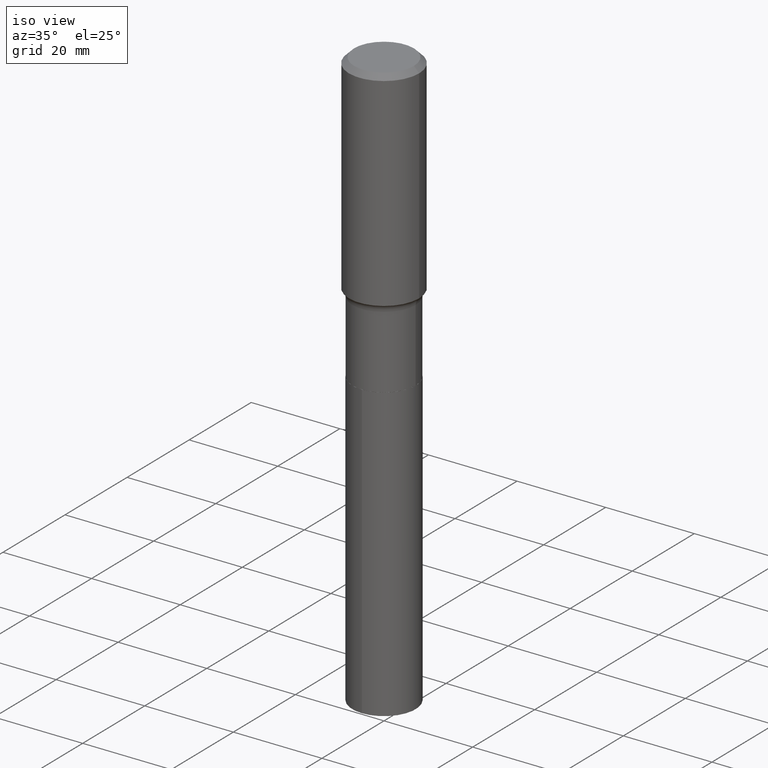
[diagram: clean part render]
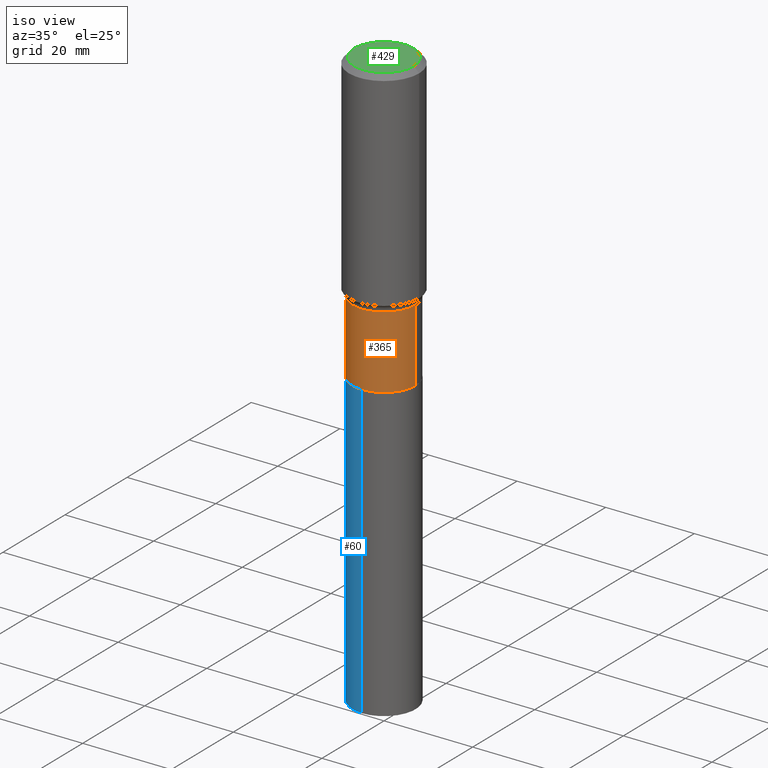
[diagram: same view with three faces highlighted in distinct colors, each labeled with its STEP entity id]
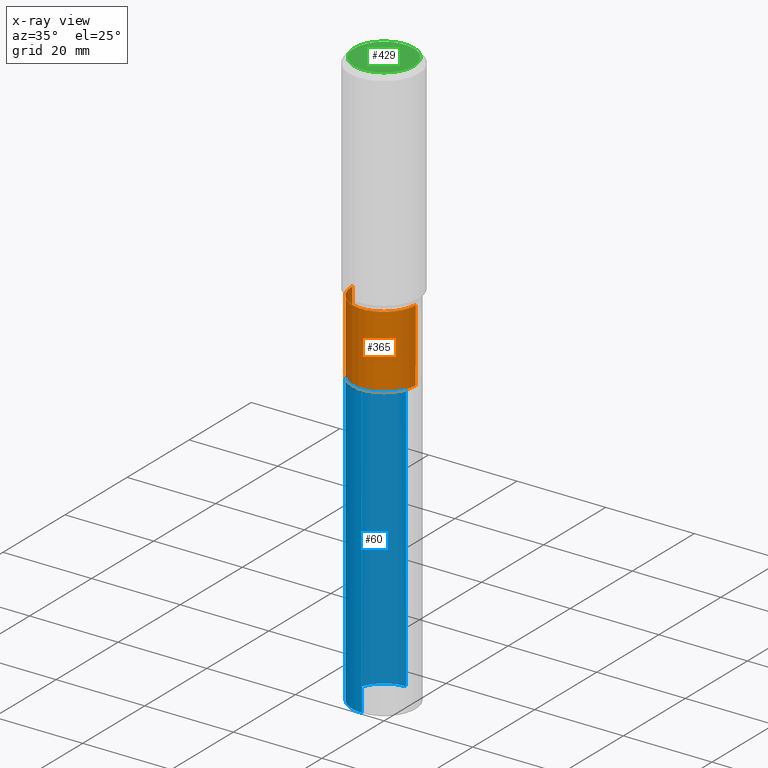
[diagram: x-ray of the same camera — body ghosted, the three highlighted faces saturated]
A machine part, iso view with three faces highlighted in distinct colors.
The next image is the same camera in x-ray (body ghosted, the three faces saturated) — at least one of them is partly hidden behind the body in this view.
Their STEP definitions:

[orange] entity #365 — the highlighted cylindrical surface (partial cylindrical patch) has radius 7.1437 mm, axis along (-0, 0, 1).
#24 = ORIENTED_EDGE ( 'NONE', *, *, #448, .F. ) ;
#32 = VECTOR ( 'NONE', #216, 39.37007874015748143 ) ;
#69 = CARTESIAN_POINT ( 'NONE',  ( 0.000000000000000000, 0.000000000000000000, 0.000000000000000000 ) ) ;
#83 = CIRCLE ( 'NONE', #358, 0.2812500000000000000 ) ;
#111 = AXIS2_PLACEMENT_3D ( 'NONE', #69, #442, #320 ) ;
#122 = CARTESIAN_POINT ( 'NONE',  ( 0.2812499999999999445, -8.652239905787192831E-15, -1.915600000000000191 ) ) ;
#123 = VERTEX_POINT ( 'NONE', #154 ) ;
#126 = VERTEX_POINT ( 'NONE', #122 ) ;
#134 = CIRCLE ( 'NONE', #299, 0.2812499999999999445 ) ;
#147 = ORIENTED_EDGE ( 'NONE', *, *, #467, .F. ) ;
#154 = CARTESIAN_POINT ( 'NONE',  ( -0.2812499999999999445, -5.818326977076751840E-15, -1.915600000000000191 ) ) ;
#164 = CYLINDRICAL_SURFACE ( 'NONE', #111, 0.2812499999999999445 ) ;
#166 = CARTESIAN_POINT ( 'NONE',  ( 6.265291081446318607E-29, -8.945175190116137696E-15, -2.561999999999999389 ) ) ;
#173 = DIRECTION ( 'NONE',  ( -2.445468806185136597E-29, 3.491481338843145583E-15, 1.000000000000000000 ) ) ;
#175 = LINE ( 'NONE', #454, #32 ) ;
#199 = VERTEX_POINT ( 'NONE', #346 ) ;
#204 = VERTEX_POINT ( 'NONE', #305 ) ;
#211 = FACE_OUTER_BOUND ( 'NONE', #399, .T. ) ;
#215 = LINE ( 'NONE', #250, #269 ) ;
#216 = DIRECTION ( 'NONE',  ( -2.445468806185136877E-29, 3.491481338843145188E-15, 1.000000000000000000 ) ) ;
#233 = DIRECTION ( 'NONE',  ( 1.000000000000000000, -6.982962677686269866E-15, 0.000000000000000000 ) ) ;
#250 = CARTESIAN_POINT ( 'NONE',  ( 0.2812499999999999445, -1.963958253099262512E-15, 1.371424718192606732E-29 ) ) ;
#254 = CARTESIAN_POINT ( 'NONE',  ( 4.684540045128248326E-29, -6.688281652687930319E-15, -1.915600000000000191 ) ) ;
#269 = VECTOR ( 'NONE', #456, 39.37007874015748143 ) ;
#299 = AXIS2_PLACEMENT_3D ( 'NONE', #254, #335, #414 ) ;
#305 = CARTESIAN_POINT ( 'NONE',  ( -0.2812500000000000555, -5.818326977076751051E-15, -2.561999999999999389 ) ) ;
#320 = DIRECTION ( 'NONE',  ( 1.000000000000000000, -6.982962677686268288E-15, 4.876176775795935793E-29 ) ) ;
#335 = DIRECTION ( 'NONE',  ( -2.445468806185136597E-29, 3.491481338843145583E-15, 1.000000000000000000 ) ) ;
#346 = CARTESIAN_POINT ( 'NONE',  ( 0.2812500000000000000, -1.090913344321540100E-14, -2.561999999999999389 ) ) ;
#358 = AXIS2_PLACEMENT_3D ( 'NONE', #166, #173, #233 ) ;
#365 = ADVANCED_FACE ( 'NONE', ( #211 ), #164, .T. ) ;
#370 = ORIENTED_EDGE ( 'NONE', *, *, #461, .T. ) ;
#376 = EDGE_CURVE ( 'NONE', #204, #199, #83, .T. ) ;
#391 = ORIENTED_EDGE ( 'NONE', *, *, #376, .T. ) ;
#399 = EDGE_LOOP ( 'NONE', ( #24, #391, #370, #147 ) ) ;
#414 = DIRECTION ( 'NONE',  ( 1.000000000000000000, -6.982962677686268288E-15, 0.000000000000000000 ) ) ;
#442 = DIRECTION ( 'NONE',  ( -2.445468806185136597E-29, 3.491481338843145583E-15, 1.000000000000000000 ) ) ;
#448 = EDGE_CURVE ( 'NONE', #204, #123, #175, .T. ) ;
#454 = CARTESIAN_POINT ( 'NONE',  ( -0.2812499999999999445, 1.998401444325281378E-15, -1.383450494134191988E-29 ) ) ;
#456 = DIRECTION ( 'NONE',  ( -2.445468806185136877E-29, 3.491481338843145188E-15, 1.000000000000000000 ) ) ;
#461 = EDGE_CURVE ( 'NONE', #199, #126, #215, .T. ) ;
#467 = EDGE_CURVE ( 'NONE', #123, #126, #134, .T. ) ;

[blue] entity #60 — the highlighted cylindrical surface (partial cylindrical patch) has radius 7.1437 mm, axis along (-0, 0, 1).
#6 = ORIENTED_EDGE ( 'NONE', *, *, #255, .F. ) ;
#20 = VERTEX_POINT ( 'NONE', #247 ) ;
#23 = DIRECTION ( 'NONE',  ( -2.445458559499423150E-29, 3.491496012680292546E-15, 1.000000000000000000 ) ) ;
#26 = VERTEX_POINT ( 'NONE', #214 ) ;
#48 = CARTESIAN_POINT ( 'NONE',  ( 6.266513815849411408E-29, -8.946920930785559988E-15, -2.562500000000000000 ) ) ;
#51 = DIRECTION ( 'NONE',  ( -2.445458559499422870E-29, 3.491496012680292941E-15, 1.000000000000000000 ) ) ;
#60 = ADVANCED_FACE ( 'NONE', ( #146 ), #462, .T. ) ;
#85 = DIRECTION ( 'NONE',  ( -2.445458559499423150E-29, 3.491496012680292546E-15, 1.000000000000000000 ) ) ;
#87 = DIRECTION ( 'NONE',  ( -2.445458559499422870E-29, 3.491496012680292941E-15, 1.000000000000000000 ) ) ;
#91 = LINE ( 'NONE', #192, #209 ) ;
#133 = VECTOR ( 'NONE', #51, 39.37007874015748143 ) ;
#138 = EDGE_LOOP ( 'NONE', ( #196, #470, #281, #6 ) ) ;
#146 = FACE_OUTER_BOUND ( 'NONE', #138, .T. ) ;
#156 = CARTESIAN_POINT ( 'NONE',  ( 1.998401444325407202E-15, 0.2812499999999818479, -5.161322215627787813 ) ) ;
#157 = EDGE_CURVE ( 'NONE', #165, #26, #226, .T. ) ;
#165 = VERTEX_POINT ( 'NONE', #156 ) ;
#192 = CARTESIAN_POINT ( 'NONE',  ( -1.963958253099199798E-15, -0.2812500000000089373, -2.562499999999998668 ) ) ;
#196 = ORIENTED_EDGE ( 'NONE', *, *, #157, .F. ) ;
#198 = AXIS2_PLACEMENT_3D ( 'NONE', #326, #363, #300 ) ;
#209 = VECTOR ( 'NONE', #87, 39.37007874015748143 ) ;
#213 = CARTESIAN_POINT ( 'NONE',  ( -1.963958253099135506E-15, -0.2812500000000179301, -5.161322215627786036 ) ) ;
#214 = CARTESIAN_POINT ( 'NONE',  ( 1.998401444325408385E-15, 0.2812499999999911182, -2.562500000000000888 ) ) ;
#219 = EDGE_CURVE ( 'NONE', #432, #20, #91, .T. ) ;
#226 = LINE ( 'NONE', #392, #133 ) ;
#247 = CARTESIAN_POINT ( 'NONE',  ( -1.963958253099199798E-15, -0.2812500000000089373, -2.562499999999998668 ) ) ;
#255 = EDGE_CURVE ( 'NONE', #26, #20, #341, .T. ) ;
#281 = ORIENTED_EDGE ( 'NONE', *, *, #219, .T. ) ;
#293 = DIRECTION ( 'NONE',  ( -6.982962677686266711E-15, -1.000000000000000000, 3.885294924322507688E-15 ) ) ;
#300 = DIRECTION ( 'NONE',  ( -6.982962677686266711E-15, -1.000000000000000000, 3.885294924322507688E-15 ) ) ;
#307 = EDGE_CURVE ( 'NONE', #165, #432, #459, .T. ) ;
#326 = CARTESIAN_POINT ( 'NONE',  ( 6.266513815849411408E-29, -8.946920930785559988E-15, -2.562500000000000000 ) ) ;
#341 = CIRCLE ( 'NONE', #379, 0.2812500000000000000 ) ;
#363 = DIRECTION ( 'NONE',  ( -2.445458559499423150E-29, 3.491496012680292546E-15, 1.000000000000000000 ) ) ;
#379 = AXIS2_PLACEMENT_3D ( 'NONE', #48, #85, #464 ) ;
#392 = CARTESIAN_POINT ( 'NONE',  ( 1.998401444325344093E-15, 0.2812499999999910627, -2.562500000000000888 ) ) ;
#397 = CARTESIAN_POINT ( 'NONE',  ( 1.262182584767364047E-28, -1.802069833431494357E-14, -5.161322215627786925 ) ) ;
#409 = AXIS2_PLACEMENT_3D ( 'NONE', #397, #23, #293 ) ;
#432 = VERTEX_POINT ( 'NONE', #213 ) ;
#459 = CIRCLE ( 'NONE', #409, 0.2812500000000000000 ) ;
#462 = CYLINDRICAL_SURFACE ( 'NONE', #198, 0.2812500000000000000 ) ;
#464 = DIRECTION ( 'NONE',  ( -6.982962677686266711E-15, -1.000000000000000000, 3.885294924322507688E-15 ) ) ;
#470 = ORIENTED_EDGE ( 'NONE', *, *, #307, .T. ) ;

[green] entity #429 — the highlighted planar face has unit normal (0, -0, -1).
#8 = CARTESIAN_POINT ( 'NONE',  ( -1.591006383764330162E-46, 2.271535455632767854E-32, 6.505936120470315685E-18 ) ) ;
#25 = CARTESIAN_POINT ( 'NONE',  ( 0.2656250000000000000, -2.064944296359970168E-15, 6.505936120484021373E-18 ) ) ;
#38 = DIRECTION ( 'NONE',  ( 2.438088387897960049E-29, -3.491481338843145188E-15, -1.000000000000000000 ) ) ;
#72 = DIRECTION ( 'NONE',  ( -1.000000000000000000, 6.982962677686265922E-15, -4.876176775795935793E-29 ) ) ;
#109 = CARTESIAN_POINT ( 'NONE',  ( -7.955031918821650812E-47, 1.135767727816383927E-32, 3.252968060235157842E-18 ) ) ;
#117 = DIRECTION ( 'NONE',  ( -2.445468806185136597E-29, 3.491481338843145583E-15, 1.000000000000000000 ) ) ;
#128 = DIRECTION ( 'NONE',  ( -2.445468806185136597E-29, 3.491481338843145583E-15, 1.000000000000000000 ) ) ;
#153 = CIRCLE ( 'NONE', #315, 0.2656250000000000000 ) ;
#160 = ORIENTED_EDGE ( 'NONE', *, *, #422, .T. ) ;
#169 = CIRCLE ( 'NONE', #200, 0.2656250000000000000 ) ;
#200 = AXIS2_PLACEMENT_3D ( 'NONE', #477, #128, #282 ) ;
#220 = FACE_OUTER_BOUND ( 'NONE', #445, .T. ) ;
#261 = EDGE_CURVE ( 'NONE', #361, #393, #153, .T. ) ;
#268 = DIRECTION ( 'NONE',  ( 1.000000000000000000, -6.982962677686268288E-15, 4.876286914311434227E-29 ) ) ;
#282 = DIRECTION ( 'NONE',  ( 1.000000000000000000, -6.982962677686268288E-15, 4.876286914311434227E-29 ) ) ;
#286 = ORIENTED_EDGE ( 'NONE', *, *, #261, .T. ) ;
#296 = PLANE ( 'NONE',  #306 ) ;
#306 = AXIS2_PLACEMENT_3D ( 'NONE', #109, #38, #72 ) ;
#315 = AXIS2_PLACEMENT_3D ( 'NONE', #8, #117, #268 ) ;
#361 = VERTEX_POINT ( 'NONE', #25 ) ;
#393 = VERTEX_POINT ( 'NONE', #481 ) ;
#422 = EDGE_CURVE ( 'NONE', #393, #361, #169, .T. ) ;
#429 = ADVANCED_FACE ( 'NONE', ( #220 ), #296, .F. ) ;
#445 = EDGE_LOOP ( 'NONE', ( #160, #286 ) ) ;
#477 = CARTESIAN_POINT ( 'NONE',  ( -1.591006383764330162E-46, 2.271535455632767854E-32, 6.505936120470315685E-18 ) ) ;
#481 = CARTESIAN_POINT ( 'NONE',  ( -0.2656250000000000000, 1.936681055139549843E-15, 6.505936120457058354E-18 ) ) ;